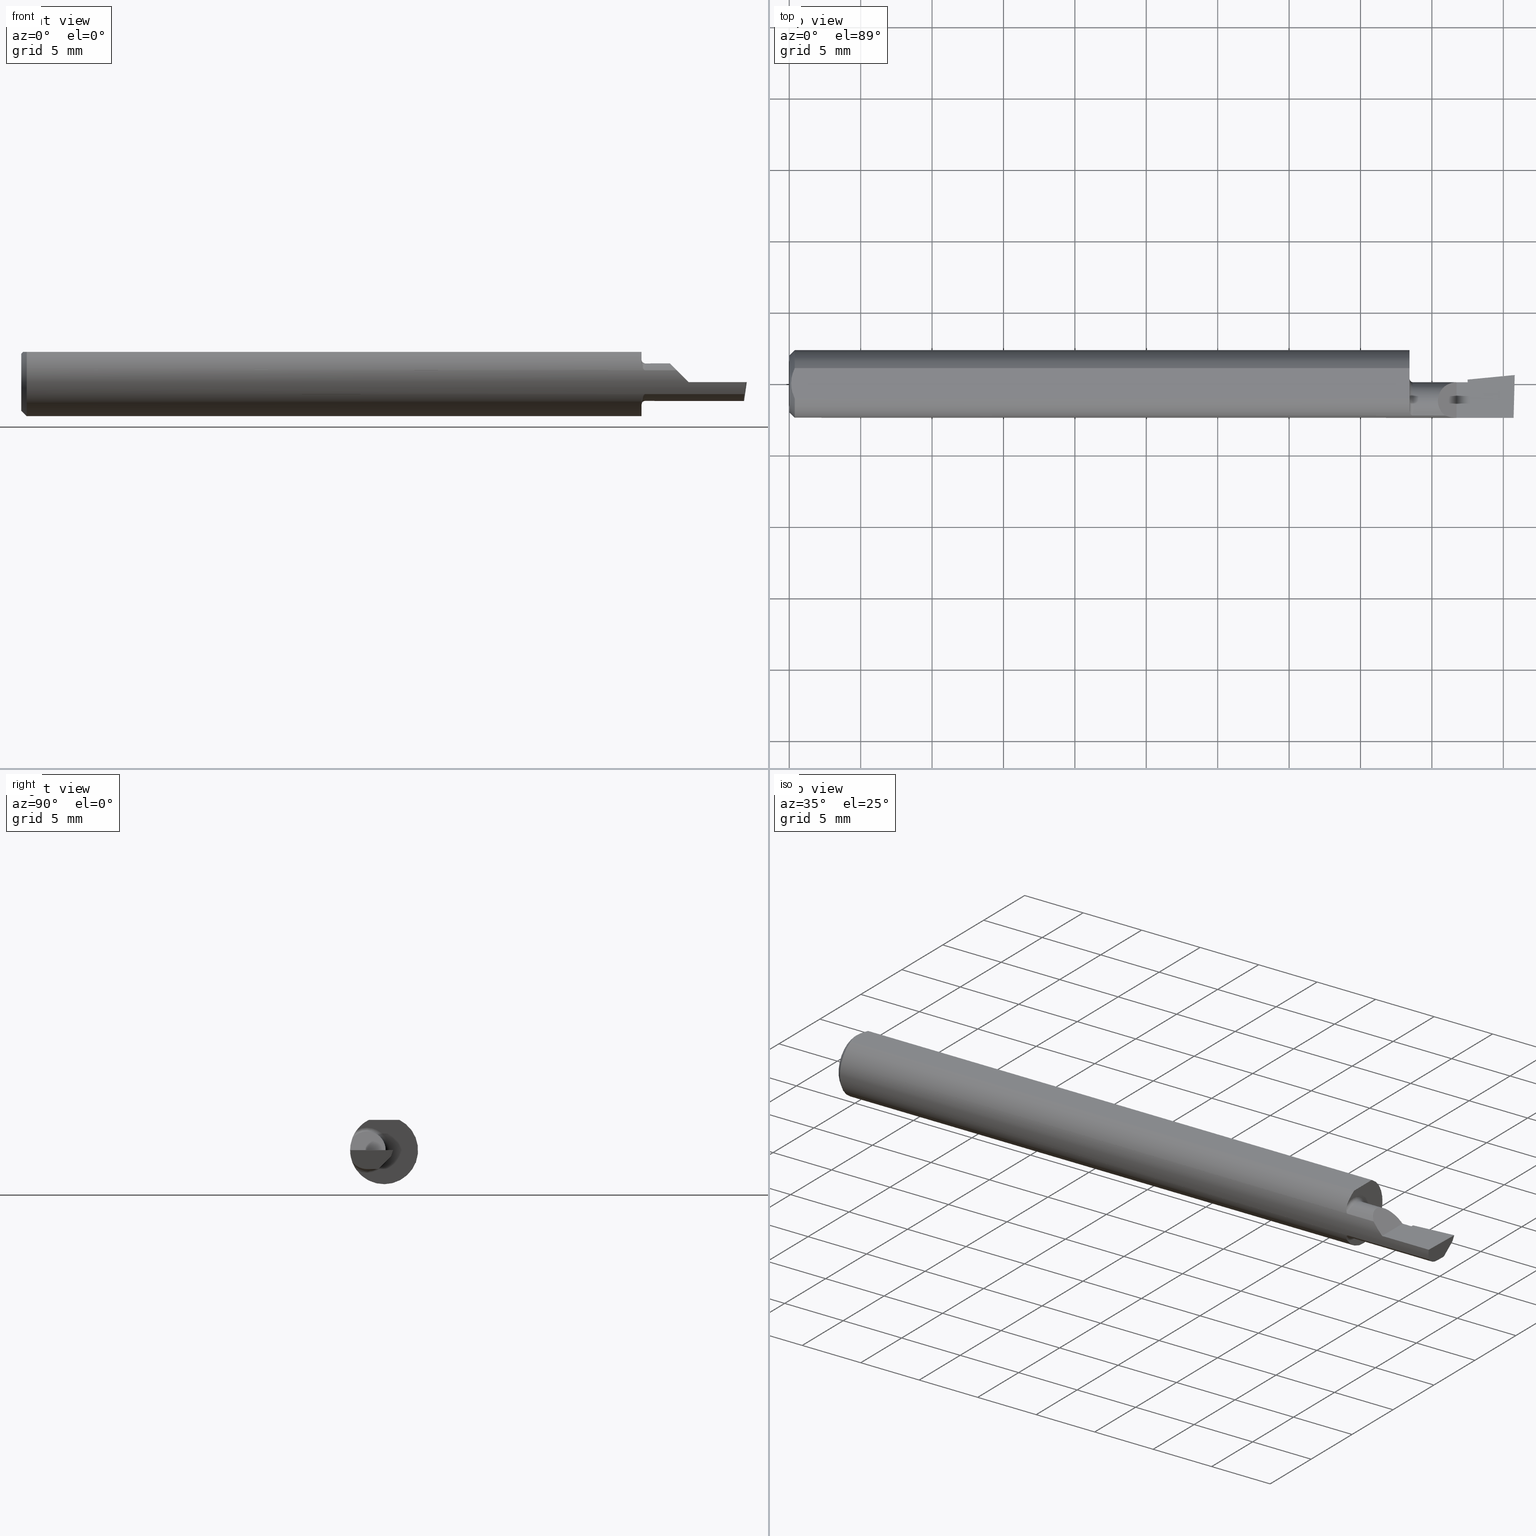
[diagram: canonical four-view strip — front | top / right | iso, engineering-drawing reading convention]
A machine part, canonical four-view strip (front | top / right | iso — engineering-drawing reading convention). The complete STEP part file that produces these views, byte-faithful:
ISO-10303-21;
HEADER;
FILE_DESCRIPTION (( 'STEP AP203' ),
    '1' );
FILE_NAME ('217288-B120250.STEP',
    '2024-04-22T22:29:31',
    ( '' ),
    ( '' ),
    'SwSTEP 2.0',
    'SolidWorks 2022',
    '' );
FILE_SCHEMA (( 'CONFIG_CONTROL_DESIGN' ));
ENDSEC;

DATA;
#1 =( BOUNDED_CURVE ( )  B_SPLINE_CURVE ( 3, ( #248, #154, #571, #54 ),
 .UNSPECIFIED., .F., .T. ) 
 B_SPLINE_CURVE_WITH_KNOTS ( ( 4, 4 ),
 ( 5.609734720198429336, 6.493234751459652898 ),
 .UNSPECIFIED. ) 
 CURVE ( )  GEOMETRIC_REPRESENTATION_ITEM ( )  RATIONAL_B_SPLINE_CURVE ( ( 1.000000000000000000, 0.9360032516356640020, 0.9360032516356640020, 1.000000000000000000 ) ) 
 REPRESENTATION_ITEM ( '' )  );
#2 = CARTESIAN_POINT ( 'NONE',  ( 1.807072063843881526, -0.08761684210526321515, 0.03292793615611791513 ) ) ;
#3 = APPROVAL ( #21, 'UNSPECIFIED' ) ;
#4 = CARTESIAN_POINT ( 'NONE',  ( 0.000000000000000000, 0.000000000000000000, 0.000000000000000000 ) ) ;
#5 = EDGE_CURVE ( 'NONE', #476, #45, #74, .T. ) ;
#6 = CARTESIAN_POINT ( 'NONE',  ( 1.870000000000000107, -0.04749999999999999362, 0.000000000000000000 ) ) ;
#7 = ORIENTED_EDGE ( 'NONE', *, *, #241, .T. ) ;
#8 = CARTESIAN_POINT ( 'NONE',  ( 0.01499999999999999598, 0.000000000000000000, 0.000000000000000000 ) ) ;
#9 = CONICAL_SURFACE ( 'NONE', #505, 0.09360000000000001652, 0.7853981633974601584 ) ;
#10 = CARTESIAN_POINT ( 'NONE',  ( 1.989525496084116662, -0.07949846265550060409, -0.06312821271502430664 ) ) ;
#11 = DIRECTION ( 'NONE',  ( 1.000000000000000000, 0.000000000000000000, 0.000000000000000000 ) ) ;
#12 = DIRECTION ( 'NONE',  ( 0.000000000000000000, 1.000000000000000000, -1.189000693621284344E-16 ) ) ;
#13 = VERTEX_POINT ( 'NONE', #88 ) ;
#14 = DIRECTION ( 'NONE',  ( 0.000000000000000000, 0.000000000000000000, 1.000000000000000000 ) ) ;
#15 = EDGE_CURVE ( 'NONE', #66, #421, #456, .T. ) ;
#16 = CARTESIAN_POINT ( 'NONE',  ( 1.807072063843881526, -0.08761684210526321515, 0.03292793615611791513 ) ) ;
#17 = VERTEX_POINT ( 'NONE', #609 ) ;
#18 = DIRECTION ( 'NONE',  ( -1.000000000000000000, -0.000000000000000000, -0.000000000000000000 ) ) ;
#19 = VECTOR ( 'NONE', #57, 39.37007874015748854 ) ;
#20 = EDGE_LOOP ( 'NONE', ( #37, #355, #261, #237, #599 ) ) ;
#21 = APPROVAL_STATUS ( 'not_yet_approved' ) ;
#22 = FACE_OUTER_BOUND ( 'NONE', #20, .T. ) ;
#23 = ORIENTED_EDGE ( 'NONE', *, *, #95, .T. ) ;
#24 =( NAMED_UNIT ( * ) PLANE_ANGLE_UNIT ( ) SI_UNIT ( $, .RADIAN. ) );
#25 = EDGE_CURVE ( 'NONE', #66, #251, #180, .T. ) ;
#26 = CARTESIAN_POINT ( 'NONE',  ( 1.870000000000000107, 0.01188242373431979727, 0.000000000000000000 ) ) ;
#27 = ORIENTED_EDGE ( 'NONE', *, *, #199, .F. ) ;
#28 = APPROVAL_ROLE ( '' ) ;
#29 = DIRECTION ( 'NONE',  ( -1.000000000000000000, 4.268512490100411279E-18, -0.000000000000000000 ) ) ;
#30 = AXIS2_PLACEMENT_3D ( 'NONE', #397, #29, #559 ) ;
#31 = ORIENTED_EDGE ( 'NONE', *, *, #183, .F. ) ;
#32 = PRODUCT_DEFINITION_FORMATION_WITH_SPECIFIED_SOURCE ( 'ANY', '', #572, .NOT_KNOWN. ) ;
#33 =( CONVERSION_BASED_UNIT ( 'INCH', #614 ) LENGTH_UNIT ( ) NAMED_UNIT ( #190 ) );
#34 = DIRECTION ( 'NONE',  ( -1.000000000000000000, -0.000000000000000000, -0.000000000000000000 ) ) ;
#35 = CARTESIAN_POINT ( 'NONE',  ( 1.715286915582778349, -0.08634457937708869824, -0.03614788177268708769 ) ) ;
#36 = LINE ( 'NONE', #367, #218 ) ;
#37 = ORIENTED_EDGE ( 'NONE', *, *, #198, .F. ) ;
#38 = CARTESIAN_POINT ( 'NONE',  ( 1.719999999999999973, -0.08761684210526313188, -0.03292793615611801228 ) ) ;
#39 = EDGE_LOOP ( 'NONE', ( #209, #203, #388 ) ) ;
#40 = DIRECTION ( 'NONE',  ( 0.000000000000000000, 1.000000000000000000, 4.268512490100410663E-17 ) ) ;
#41 = VERTEX_POINT ( 'NONE', #458 ) ;
#42 = ADVANCED_FACE ( 'NONE', ( #523 ), #100, .F. ) ;
#43 = CARTESIAN_POINT ( 'NONE',  ( 1.870000000000000107, -0.01305595953706601732, -0.03732347359622881222 ) ) ;
#44 = CARTESIAN_POINT ( 'NONE',  ( 2.010452112766631050, 0.02018496383838343580, -0.01700000000000000122 ) ) ;
#45 = VERTEX_POINT ( 'NONE', #188 ) ;
#46 = CIRCLE ( 'NONE', #485, 0.05189999999999998781 ) ;
#47 = ORGANIZATION ( 'UNSPECIFIED', 'UNSPECIFIED', '' ) ;
#48 = DIRECTION ( 'NONE',  ( -0.06894566448119622548, 0.7160281025913036723, -0.6946583704589932573 ) ) ;
#49 = EDGE_LOOP ( 'NONE', ( #164, #156, #301, #83 ) ) ;
#50 = ADVANCED_FACE ( 'NONE', ( #377 ), #380, .T. ) ;
#51 = DIRECTION ( 'NONE',  ( 0.000000000000000000, 0.000000000000000000, 1.000000000000000000 ) ) ;
#52 = ADVANCED_FACE ( 'NONE', ( #516 ), #279, .F. ) ;
#53 = DIRECTION ( 'NONE',  ( 0.000000000000000000, 0.2936076258024070129, 0.9559260233253792371 ) ) ;
#54 = CARTESIAN_POINT ( 'NONE',  ( 1.991742529076753865, -0.04749999999999999362, -0.05189999999999998087 ) ) ;
#55 = FACE_OUTER_BOUND ( 'NONE', #362, .T. ) ;
#56 = ORIENTED_EDGE ( 'NONE', *, *, #439, .F. ) ;
#57 = DIRECTION ( 'NONE',  ( -0.9953961983671800740, -0.09584575252021031166, -2.116984158397002882E-18 ) ) ;
#58 = CIRCLE ( 'NONE', #399, 0.06189999999999996894 ) ;
#59 = CARTESIAN_POINT ( 'NONE',  ( 1.719999999999999973, -0.08761684210526289596, 0.03292793615611830371 ) ) ;
#60 = ORIENTED_EDGE ( 'NONE', *, *, #95, .F. ) ;
#61 = CARTESIAN_POINT ( 'NONE',  ( 1.719999999999999973, -0.04749999999999998668, 0.000000000000000000 ) ) ;
#62 = CARTESIAN_POINT ( 'NONE',  ( 1.709999999999898490, -0.07844579323533026893, 0.05128294267166446513 ) ) ;
#63 = ORIENTED_EDGE ( 'NONE', *, *, #298, .F. ) ;
#64 = CALENDAR_DATE ( 2024, 22, 4 ) ;
#65 = LINE ( 'NONE', #159, #207 ) ;
#66 = VERTEX_POINT ( 'NONE', #425 ) ;
#67 = CARTESIAN_POINT ( 'NONE',  ( 0.01499999999999999598, 0.000000000000000000, 0.000000000000000000 ) ) ;
#68 = VECTOR ( 'NONE', #445, 39.37007874015748143 ) ;
#69 = LOCAL_TIME ( 15, 29, 31.00000000000000000, #213 ) ;
#70 = ORIENTED_EDGE ( 'NONE', *, *, #198, .T. ) ;
#71 = EDGE_CURVE ( 'NONE', #468, #126, #461, .T. ) ;
#72 = ADVANCED_FACE ( 'NONE', ( #98 ), #517, .T. ) ;
#73 = PERSON_AND_ORGANIZATION ( #313, #47 ) ;
#74 = B_SPLINE_CURVE_WITH_KNOTS ( 'NONE', 3,
 ( #402, #406, #266, #454, #35, #231, #135, #323, #272, #224 ),
 .UNSPECIFIED., .F., .F.,
 ( 4, 2, 2, 2, 4 ),
 ( 1.964515010636166552E-07, 9.235243646263626891E-05, 0.0001845084214242089275, 0.0003688203913473437549, 0.0007374443311936186140 ),
 .UNSPECIFIED. ) ;
#75 = CARTESIAN_POINT ( 'NONE',  ( 0.000000000000000000, -0.04209513035969835587, 0.08360000000000000764 ) ) ;
#76 = VERTEX_POINT ( 'NONE', #244 ) ;
#77 = SECURITY_CLASSIFICATION_LEVEL ( 'unclassified' ) ;
#78 = CARTESIAN_POINT ( 'NONE',  ( 0.000000000000000000, 0.000000000000000000, 0.000000000000000000 ) ) ;
#79 = ORIENTED_EDGE ( 'NONE', *, *, #25, .T. ) ;
#80 = COORDINATED_UNIVERSAL_TIME_OFFSET ( 8, 0, .BEHIND. ) ;
#81 = CARTESIAN_POINT ( 'NONE',  ( 0.01499999999999999598, 0.04209513035969837669, 0.08360000000000000764 ) ) ;
#82 = CIRCLE ( 'NONE', #274, 0.09360000000000001652 ) ;
#83 = ORIENTED_EDGE ( 'NONE', *, *, #365, .T. ) ;
#84 = LOCAL_TIME ( 15, 29, 31.00000000000000000, #601 ) ;
#85 = AXIS2_PLACEMENT_3D ( 'NONE', #538, #451, #162 ) ;
#86 = EDGE_CURVE ( 'NONE', #496, #118, #593, .T. ) ;
#87 = DIRECTION ( 'NONE',  ( -5.493159289247764363E-16, 0.000000000000000000, -1.000000000000000000 ) ) ;
#88 = CARTESIAN_POINT ( 'NONE',  ( 1.807072063843881526, -0.08761684210526321515, 0.03292793615611791513 ) ) ;
#89 = CARTESIAN_POINT ( 'NONE',  ( 1.870000000000000107, 0.008372692350077825391, -0.01142696330148601676 ) ) ;
#90 = CARTESIAN_POINT ( 'NONE',  ( 1.991748187365211642, -0.04728391868154194211, -0.05189999999999998087 ) ) ;
#91 = FACE_OUTER_BOUND ( 'NONE', #101, .T. ) ;
#92 = VERTEX_POINT ( 'NONE', #620 ) ;
#93 = EDGE_CURVE ( 'NONE', #509, #13, #232, .T. ) ;
#94 = LOCAL_TIME ( 15, 29, 31.00000000000000000, #172 ) ;
#95 = EDGE_CURVE ( 'NONE', #92, #341, #484, .T. ) ;
#96 = CARTESIAN_POINT ( 'NONE',  ( 1.840000000000000080, -0.09360000000000005815, 1.959434878635762025E-17 ) ) ;
#97 = CARTESIAN_POINT ( 'NONE',  ( 1.996910061254837165, -0.09360000000000009979, -6.663204267364720514E-17 ) ) ;
#98 = FACE_OUTER_BOUND ( 'NONE', #310, .T. ) ;
#99 = ORIENTED_EDGE ( 'NONE', *, *, #393, .T. ) ;
#100 = PLANE ( 'NONE',  #179 ) ;
#101 = EDGE_LOOP ( 'NONE', ( #433, #534, #562 ) ) ;
#102 = AXIS2_PLACEMENT_3D ( 'NONE', #26, #184, #448 ) ;
#103 = LOCAL_TIME ( 15, 29, 31.00000000000000000, #80 ) ;
#104 = CARTESIAN_POINT ( 'NONE',  ( 2.009953961983671267, 0.02535845752520198698, -6.829619984160658046E-17 ) ) ;
#105 = ORIENTED_EDGE ( 'NONE', *, *, #596, .F. ) ;
#106 = CARTESIAN_POINT ( 'NONE',  ( 2.000000000000000000, -0.04749999999999999362, -0.05189999999999998087 ) ) ;
#107 = CARTESIAN_POINT ( 'NONE',  ( 1.996910061254837165, -0.09360000000000009979, -6.663204267364720514E-17 ) ) ;
#108 = EDGE_LOOP ( 'NONE', ( #553, #187 ) ) ;
#109 = LINE ( 'NONE', #481, #256 ) ;
#110 = ADVANCED_FACE ( 'NONE', ( #570 ), #337, .T. ) ;
#111 = DIRECTION ( 'NONE',  ( 1.000000000000000000, 0.000000000000000000, 0.000000000000000000 ) ) ;
#112 = VECTOR ( 'NONE', #617, 39.37007874015748854 ) ;
#113 = AXIS2_PLACEMENT_3D ( 'NONE', #514, #583, #197 ) ;
#114 = CARTESIAN_POINT ( 'NONE',  ( 1.709999999999999964, 0.000000000000000000, 0.000000000000000000 ) ) ;
#115 = ORIENTED_EDGE ( 'NONE', *, *, #183, .T. ) ;
#116 =( LENGTH_UNIT ( ) NAMED_UNIT ( * ) SI_UNIT ( $, .METRE. ) );
#117 = CARTESIAN_POINT ( 'NONE',  ( 1.715303445302489349, -0.08635481258357650958, 0.03612357338114666194 ) ) ;
#118 = VERTEX_POINT ( 'NONE', #107 ) ;
#119 = APPROVAL_ROLE ( '' ) ;
#120 = CARTESIAN_POINT ( 'NONE',  ( 5.659797890829555466E-31, -0.09359999999999998876, 1.030335658007946046E-15 ) ) ;
#121 = ADVANCED_FACE ( 'NONE', ( #567 ), #332, .T. ) ;
#122 = VERTEX_POINT ( 'NONE', #475 ) ;
#123 = PERSON_AND_ORGANIZATION_ROLE ( 'classification_officer' ) ;
#124 = DIRECTION ( 'NONE',  ( 0.7071067811865391350, 8.659560562355035164E-17, 0.7071067811865558994 ) ) ;
#125 = VECTOR ( 'NONE', #560, 39.37007874015748854 ) ;
#126 = VERTEX_POINT ( 'NONE', #423 ) ;
#127 = PERSON_AND_ORGANIZATION ( #313, #47 ) ;
#128 = CARTESIAN_POINT ( 'NONE',  ( 0.01499999999999999944, -0.04209513035969835587, 0.08360000000000000764 ) ) ;
#129 = ORIENTED_EDGE ( 'NONE', *, *, #558, .F. ) ;
#130 = CARTESIAN_POINT ( 'NONE',  ( 0.009492654797564337166, 0.02859466010166625619, 0.08359999999999997988 ) ) ;
#131 = ORIENTED_EDGE ( 'NONE', *, *, #5, .F. ) ;
#132 = PERSON_AND_ORGANIZATION ( #313, #47 ) ;
#133 = CARTESIAN_POINT ( 'NONE',  ( 1.870000000000000107, -0.2500000000000000555, 3.114870918614344945E-18 ) ) ;
#134 = CONICAL_SURFACE ( 'NONE', #471, 0.09360000000000001652, 0.7853981633974601584 ) ;
#135 = CARTESIAN_POINT ( 'NONE',  ( 1.712677195950602860, -0.08414098289636359751, -0.04106822915973741550 ) ) ;
#136 = APPROVAL_PERSON_ORGANIZATION ( #73, #249, #119 ) ;
#137 = CARTESIAN_POINT ( 'NONE',  ( 1.870000000000000107, -0.04749999999999999362, 0.000000000000000000 ) ) ;
#138 = ORIENTED_EDGE ( 'NONE', *, *, #450, .T. ) ;
#139 = CARTESIAN_POINT ( 'NONE',  ( 1.709999999999999964, -0.07563789473684218168, 0.05513500593795547106 ) ) ;
#140 = EDGE_CURVE ( 'NONE', #468, #76, #46, .T. ) ;
#141 = ORIENTED_EDGE ( 'NONE', *, *, #285, .T. ) ;
#142 = ADVANCED_FACE ( 'NONE', ( #55 ), #416, .F. ) ;
#143 = LINE ( 'NONE', #276, #335 ) ;
#144 = CARTESIAN_POINT ( 'NONE',  ( 1.840000000000000080, -0.09360000000000005815, 1.959434878635762025E-17 ) ) ;
#145 = CIRCLE ( 'NONE', #610, 0.07859999999999965625 ) ;
#146 = DIRECTION ( 'NONE',  ( 0.000000000000000000, -1.000000000000000000, -4.268512490100410663E-17 ) ) ;
#147 = DIRECTION ( 'NONE',  ( -2.429359850419095176E-34, -4.268512490100410663E-17, 1.000000000000000000 ) ) ;
#148 = B_SPLINE_CURVE_WITH_KNOTS ( 'NONE', 3,
 ( #488, #62, #442, #250, #483, #117, #387, #491, #585, #59 ),
 .UNSPECIFIED., .F., .F.,
 ( 4, 2, 2, 2, 4 ),
 ( 0.0002213210176920300961, 0.0005840120096731141620, 0.0007653575056636530236, 0.0008560302536589276586, 0.0009467030016542025105 ),
 .UNSPECIFIED. ) ;
#149 = CARTESIAN_POINT ( 'NONE',  ( 0.000000000000000000, -0.04749999999999998668, 0.000000000000000000 ) ) ;
#150 = VECTOR ( 'NONE', #495, 39.37007874015748143 ) ;
#151 = DIRECTION ( 'NONE',  ( 1.000000000000000000, -4.268512490100411279E-18, 0.000000000000000000 ) ) ;
#152 = CARTESIAN_POINT ( 'NONE',  ( 1.870000000000000107, 0.004399999999999983785, 1.030335658007946243E-15 ) ) ;
#153 = CARTESIAN_POINT ( 'NONE',  ( 1.991742529076753865, -0.04749999999999999362, -0.05189999999999998087 ) ) ;
#154 = CARTESIAN_POINT ( 'NONE',  ( 1.991784456001940651, -0.07759022324566726414, -0.04514359047872664593 ) ) ;
#155 = CARTESIAN_POINT ( 'NONE',  ( 1.870000000000000107, 0.01188242373432203680, 1.035114278849349724E-15 ) ) ;
#156 = ORIENTED_EDGE ( 'NONE', *, *, #235, .T. ) ;
#157 = DIRECTION ( 'NONE',  ( 0.1240019227989161837, 0.3022330132596645624, 0.9451342385281334968 ) ) ;
#158 = VECTOR ( 'NONE', #40, 39.37007874015748143 ) ;
#159 = CARTESIAN_POINT ( 'NONE',  ( 1.992819506803471974, -0.2498119721683277894, -6.435184055121769344E-17 ) ) ;
#160 = ORIENTED_EDGE ( 'NONE', *, *, #243, .T. ) ;
#161 = APPROVAL ( #356, 'UNSPECIFIED' ) ;
#162 = DIRECTION ( 'NONE',  ( 1.000000000000000000, 0.000000000000000000, 0.000000000000000000 ) ) ;
#163 = DIRECTION ( 'NONE',  ( 0.000000000000000000, 0.000000000000000000, -1.000000000000000000 ) ) ;
#164 = ORIENTED_EDGE ( 'NONE', *, *, #608, .F. ) ;
#165 = DATE_AND_TIME ( #302, #69 ) ;
#166 = PLANE ( 'NONE',  #102 ) ;
#167 = ORIENTED_EDGE ( 'NONE', *, *, #285, .F. ) ;
#168 = PERSON_AND_ORGANIZATION_ROLE ( 'creator' ) ;
#169 = LINE ( 'NONE', #358, #532 ) ;
#170 = AXIS2_PLACEMENT_3D ( 'NONE', #263, #506, #322 ) ;
#171 = ORIENTED_EDGE ( 'NONE', *, *, #575, .F. ) ;
#172 = COORDINATED_UNIVERSAL_TIME_OFFSET ( 8, 0, .BEHIND. ) ;
#173 = CARTESIAN_POINT ( 'NONE',  ( 1.870000000000000107, -0.01879551486568540111, -0.04323959450751024142 ) ) ;
#174 = ORIENTED_EDGE ( 'NONE', *, *, #510, .F. ) ;
#175 = PERSON_AND_ORGANIZATION_ROLE ( 'design_supplier' ) ;
#176 = DIRECTION ( 'NONE',  ( 0.9953961983671787417, 0.09584575252022463354, -5.467869873542577569E-16 ) ) ;
#177 = ORIENTED_EDGE ( 'NONE', *, *, #199, .T. ) ;
#178 = DIRECTION ( 'NONE',  ( -1.000000000000000000, 4.268512490100411279E-18, -0.000000000000000000 ) ) ;
#179 = AXIS2_PLACEMENT_3D ( 'NONE', #278, #473, #328 ) ;
#180 = LINE ( 'NONE', #90, #125 ) ;
#181 = CIRCLE ( 'NONE', #440, 0.09360000000000001652 ) ;
#182 = EDGE_CURVE ( 'NONE', #468, #338, #465, .T. ) ;
#183 = EDGE_CURVE ( 'NONE', #92, #603, #383, .T. ) ;
#184 = DIRECTION ( 'NONE',  ( -1.000000000000000000, 4.268512490100411279E-18, 0.000000000000000000 ) ) ;
#185 = EDGE_LOOP ( 'NONE', ( #167, #499, #177, #334, #321, #63, #60, #115, #174, #319, #351, #247, #131 ) ) ;
#186 = PLANE ( 'NONE',  #533 ) ;
#187 = ORIENTED_EDGE ( 'NONE', *, *, #596, .T. ) ;
#188 = CARTESIAN_POINT ( 'NONE',  ( 1.709999999999999964, -0.07563789473684218168, -0.05513500593795547106 ) ) ;
#189 = AXIS2_PLACEMENT_3D ( 'NONE', #137, #597, #508 ) ;
#190 = DIMENSIONAL_EXPONENTS ( 1.000000000000000000, 0.000000000000000000, 0.000000000000000000, 0.000000000000000000, 0.000000000000000000, 0.000000000000000000, 0.000000000000000000 ) ;
#191 = CARTESIAN_POINT ( 'NONE',  ( 1.870000000000000107, -0.04749999999999999362, 0.000000000000000000 ) ) ;
#192 = DIRECTION ( 'NONE',  ( 1.000000000000000000, -4.268512490100411279E-18, 0.000000000000000000 ) ) ;
#193 = CARTESIAN_POINT ( 'NONE',  ( 1.870000000000000107, -0.04749999999999999362, -0.05189999999999998087 ) ) ;
#194 = DIRECTION ( 'NONE',  ( 1.000000000000000000, -4.268512490100411279E-18, 0.000000000000000000 ) ) ;
#195 = ORIENTED_EDGE ( 'NONE', *, *, #478, .F. ) ;
#196 = VECTOR ( 'NONE', #124, 39.37007874015748143 ) ;
#197 = DIRECTION ( 'NONE',  ( -4.268512490100411279E-18, -1.000000000000000000, 0.000000000000000000 ) ) ;
#198 = EDGE_CURVE ( 'NONE', #275, #446, #300, .T. ) ;
#199 = EDGE_CURVE ( 'NONE', #118, #509, #385, .T. ) ;
#200 = DIRECTION ( 'NONE',  ( -0.9922060308645500593, 0.02598182930467757279, 0.1218693434051330293 ) ) ;
#201 = DIRECTION ( 'NONE',  ( -1.000000000000000000, -0.000000000000000000, -0.000000000000000000 ) ) ;
#202 = PLANE ( 'NONE',  #544 ) ;
#203 = ORIENTED_EDGE ( 'NONE', *, *, #182, .T. ) ;
#204 = CARTESIAN_POINT ( 'NONE',  ( 0.000000000000000000, 0.000000000000000000, 0.000000000000000000 ) ) ;
#205 = CC_DESIGN_PERSON_AND_ORGANIZATION_ASSIGNMENT ( #403, #168, ( #282 ) ) ;
#206 = VERTEX_POINT ( 'NONE', #155 ) ;
#207 = VECTOR ( 'NONE', #253, 39.37007874015748854 ) ;
#208 = LINE ( 'NONE', #539, #518 ) ;
#209 = ORIENTED_EDGE ( 'NONE', *, *, #140, .F. ) ;
#210 =( NAMED_UNIT ( * ) SI_UNIT ( $, .STERADIAN. ) SOLID_ANGLE_UNIT ( ) );
#211 = FACE_OUTER_BOUND ( 'NONE', #436, .T. ) ;
#212 = ORIENTED_EDGE ( 'NONE', *, *, #482, .F. ) ;
#213 = COORDINATED_UNIVERSAL_TIME_OFFSET ( 8, 0, .BEHIND. ) ;
#214 = LINE ( 'NONE', #223, #333 ) ;
#215 = ORIENTED_EDGE ( 'NONE', *, *, #459, .F. ) ;
#216 = EDGE_CURVE ( 'NONE', #17, #126, #579, .T. ) ;
#217 = DATE_AND_TIME ( #494, #103 ) ;
#218 = VECTOR ( 'NONE', #225, 39.37007874015748143 ) ;
#219 = CARTESIAN_POINT ( 'NONE',  ( 1.709999999999999964, -0.04749999999999999362, 0.000000000000000000 ) ) ;
#220 = AXIS2_PLACEMENT_3D ( 'NONE', #320, #87, #268 ) ;
#221 = ORIENTED_EDGE ( 'NONE', *, *, #584, .T. ) ;
#222 = APPROVAL_DATE_TIME ( #217, #249 ) ;
#223 = CARTESIAN_POINT ( 'NONE',  ( 1.253289949938072301, -0.04749999999999999362, 3.418835249456273698E-16 ) ) ;
#224 = CARTESIAN_POINT ( 'NONE',  ( 1.709999999999999964, -0.07563789473684218168, -0.05513500593795547106 ) ) ;
#225 = DIRECTION ( 'NONE',  ( -4.268512490100411279E-18, -1.000000000000000000, 1.189000693621284344E-16 ) ) ;
#226 = CC_DESIGN_PERSON_AND_ORGANIZATION_ASSIGNMENT ( #132, #123, ( #381 ) ) ;
#227 = CARTESIAN_POINT ( 'NONE',  ( 1.997999968238724611, 0.02048992710402963019, -0.01544976510332472103 ) ) ;
#228 = ADVANCED_FACE ( 'NONE', ( #390 ), #202, .F. ) ;
#229 = CARTESIAN_POINT ( 'NONE',  ( 1.840000000000000080, -0.2500000000000000555, 1.959434878635762025E-17 ) ) ;
#230 = AXIS2_PLACEMENT_3D ( 'NONE', #44, #48, #234 ) ;
#231 = CARTESIAN_POINT ( 'NONE',  ( 1.713517105801555918, -0.08509955497191655505, -0.03903086882732484386 ) ) ;
#232 =( BOUNDED_CURVE ( )  B_SPLINE_CURVE ( 3, ( #144, #569, #376, #2 ),
 .UNSPECIFIED., .F., .F. ) 
 B_SPLINE_CURVE_WITH_KNOTS ( ( 4, 4 ),
 ( 4.712388980384689674, 5.071876106261397510 ),
 .UNSPECIFIED. ) 
 CURVE ( )  GEOMETRIC_REPRESENTATION_ITEM ( )  RATIONAL_B_SPLINE_CURVE ( ( 1.000000000000000000, 0.9892597135044074452, 0.9892597135044074452, 1.000000000000000000 ) ) 
 REPRESENTATION_ITEM ( '' )  );
#233 = ORIENTED_EDGE ( 'NONE', *, *, #392, .F. ) ;
#234 = DIRECTION ( 'NONE',  ( 0.000000000000000000, 0.6963153109074923242, 0.7177360153954949196 ) ) ;
#235 = EDGE_CURVE ( 'NONE', #421, #17, #529, .T. ) ;
#236 = CARTESIAN_POINT ( 'NONE',  ( 1.994214979946649979, -0.09158396120079809188, -0.02237196186856233587 ) ) ;
#237 = ORIENTED_EDGE ( 'NONE', *, *, #510, .T. ) ;
#238 = VECTOR ( 'NONE', #245, 39.37007874015748143 ) ;
#239 = DIRECTION ( 'NONE',  ( 0.000000000000000000, 0.000000000000000000, 1.000000000000000000 ) ) ;
#240 = DIRECTION ( 'NONE',  ( -1.000000000000000000, 4.268512490100411279E-18, -0.000000000000000000 ) ) ;
#241 = EDGE_CURVE ( 'NONE', #258, #512, #618, .T. ) ;
#242 = LINE ( 'NONE', #424, #318 ) ;
#243 = EDGE_CURVE ( 'NONE', #13, #122, #492, .T. ) ;
#244 = CARTESIAN_POINT ( 'NONE',  ( 1.870000000000000107, -0.04749999999999999362, -0.05189999999999998087 ) ) ;
#245 = DIRECTION ( 'NONE',  ( 1.000000000000000000, -4.268512490100411279E-18, 0.000000000000000000 ) ) ;
#246 = FACE_OUTER_BOUND ( 'NONE', #613, .T. ) ;
#247 = ORIENTED_EDGE ( 'NONE', *, *, #270, .F. ) ;
#248 = CARTESIAN_POINT ( 'NONE',  ( 1.993022307651337144, -0.08761684210526320127, -0.03292793615611794983 ) ) ;
#249 = APPROVAL ( #396, 'UNSPECIFIED' ) ;
#250 = CARTESIAN_POINT ( 'NONE',  ( 1.712672428355745069, -0.08413290827570171770, 0.04108351314867479676 ) ) ;
#251 = VERTEX_POINT ( 'NONE', #153 ) ;
#252 = APPROVAL_DATE_TIME ( #360, #3 ) ;
#253 = DIRECTION ( 'NONE',  ( 0.02617694830785724860, 0.9996573249755575929, -1.459184416195239787E-17 ) ) ;
#254 = ORIENTED_EDGE ( 'NONE', *, *, #524, .F. ) ;
#255 = PERSON_AND_ORGANIZATION ( #313, #47 ) ;
#256 = VECTOR ( 'NONE', #157, 39.37007874015748854 ) ;
#257 = DIRECTION ( 'NONE',  ( 1.000000000000000000, -4.268512490100411279E-18, 0.000000000000000000 ) ) ;
#258 = VERTEX_POINT ( 'NONE', #498 ) ;
#259 = COORDINATED_UNIVERSAL_TIME_OFFSET ( 8, 0, .BEHIND. ) ;
#260 = CARTESIAN_POINT ( 'NONE',  ( 1.709999999999999964, 0.04209513035969836975, 0.08360000000000000764 ) ) ;
#261 = ORIENTED_EDGE ( 'NONE', *, *, #469, .T. ) ;
#262 = CALENDAR_DATE ( 2024, 22, 4 ) ;
#263 = CARTESIAN_POINT ( 'NONE',  ( 1.840000000000000080, -0.2500000000000000555, 1.959434878635762025E-17 ) ) ;
#264 = ORIENTED_EDGE ( 'NONE', *, *, #5, .T. ) ;
#265 = LINE ( 'NONE', #133, #305 ) ;
#266 = CARTESIAN_POINT ( 'NONE',  ( 1.717673407485087012, -0.08736256188074749407, -0.03360771121218446289 ) ) ;
#267 = CC_DESIGN_DATE_AND_TIME_ASSIGNMENT ( #165, #500, ( #282 ) ) ;
#268 = DIRECTION ( 'NONE',  ( -1.000000000000000000, 0.000000000000000000, 5.493159289247764363E-16 ) ) ;
#269 = VERTEX_POINT ( 'NONE', #260 ) ;
#270 = EDGE_CURVE ( 'NONE', #45, #269, #82, .T. ) ;
#271 = CARTESIAN_POINT ( 'NONE',  ( 1.870000000000000107, -0.02719745208736015774, -0.05189999999999998087 ) ) ;
#272 = CARTESIAN_POINT ( 'NONE',  ( 1.709999999999999964, -0.07847738094181314072, -0.05123960853979434016 ) ) ;
#273 = PLANE ( 'NONE',  #170 ) ;
#274 = AXIS2_PLACEMENT_3D ( 'NONE', #114, #257, #536 ) ;
#275 = VERTEX_POINT ( 'NONE', #589 ) ;
#276 = CARTESIAN_POINT ( 'NONE',  ( 0.000000000000000000, 0.04209513035969837669, 0.08360000000000000764 ) ) ;
#277 = DIRECTION ( 'NONE',  ( 4.268512490100411279E-18, 1.000000000000000000, 0.000000000000000000 ) ) ;
#278 = CARTESIAN_POINT ( 'NONE',  ( 1.870000000000000107, 0.01188242373431979727, 0.000000000000000000 ) ) ;
#279 = PLANE ( 'NONE',  #586 ) ;
#280 = AXIS2_PLACEMENT_3D ( 'NONE', #329, #192, #378 ) ;
#281 = AXIS2_PLACEMENT_3D ( 'NONE', #61, #336, #431 ) ;
#282 = PRODUCT_DEFINITION ( 'UNKNOWN', '', #32, #470 ) ;
#283 = DIRECTION ( 'NONE',  ( 0.000000000000000000, -1.000000000000000000, 2.664535259100375697E-15 ) ) ;
#284 = ADVANCED_FACE ( 'NONE', ( #22 ), #134, .T. ) ;
#285 = EDGE_CURVE ( 'NONE', #496, #476, #208, .T. ) ;
#286 = CARTESIAN_POINT ( 'NONE',  ( 1.993022307651337144, -0.08761684210526320127, -0.03292793615611794983 ) ) ;
#287 = DIRECTION ( 'NONE',  ( -1.000000000000000000, 4.268512490100411279E-18, -0.000000000000000000 ) ) ;
#288 = EDGE_LOOP ( 'NONE', ( #129, #141, #215, #543, #160, #502, #582, #590, #493, #525 ) ) ;
#289 = LINE ( 'NONE', #106, #519 ) ;
#290 = APPLICATION_CONTEXT ( 'configuration controlled 3d designs of mechanical parts and assemblies' ) ;
#291 = CARTESIAN_POINT ( 'NONE',  ( 1.761940995672496513, -0.05057322517486217972, 0.07805900432750237372 ) ) ;
#292 = ORIENTED_EDGE ( 'NONE', *, *, #343, .F. ) ;
#293 = PRODUCT_RELATED_PRODUCT_CATEGORY ( 'detail', '', ( #572 ) ) ;
#294 = CIRCLE ( 'NONE', #30, 0.05189999999999997393 ) ;
#295 = FACE_OUTER_BOUND ( 'NONE', #594, .T. ) ;
#296 = DIRECTION ( 'NONE',  ( -1.000000000000000000, 4.268512490100411279E-18, -0.000000000000000000 ) ) ;
#297 = ORIENTED_EDGE ( 'NONE', *, *, #469, .F. ) ;
#298 = EDGE_CURVE ( 'NONE', #341, #606, #148, .T. ) ;
#299 = DIRECTION ( 'NONE',  ( -2.972230601656782806E-18, -0.6963153109074922131, -0.7177360153954949196 ) ) ;
#300 = LINE ( 'NONE', #429, #196 ) ;
#301 = ORIENTED_EDGE ( 'NONE', *, *, #450, .F. ) ;
#302 = CALENDAR_DATE ( 2024, 22, 4 ) ;
#303 = ORIENTED_EDGE ( 'NONE', *, *, #182, .F. ) ;
#304 = PERSON_AND_ORGANIZATION ( #313, #47 ) ;
#305 = VECTOR ( 'NONE', #317, 39.37007874015748143 ) ;
#306 = DIRECTION ( 'NONE',  ( 0.000000000000000000, 0.000000000000000000, 1.000000000000000000 ) ) ;
#307 = ORIENTED_EDGE ( 'NONE', *, *, #298, .T. ) ;
#308 = EDGE_CURVE ( 'NONE', #118, #41, #65, .T. ) ;
#309 = LINE ( 'NONE', #89, #565 ) ;
#310 = EDGE_LOOP ( 'NONE', ( #366, #345, #303, #105, #391, #615 ) ) ;
#311 = CARTESIAN_POINT ( 'NONE',  ( 0.01203648650249650523, 0.03550565407121123590, 0.08360000000000000764 ) ) ;
#312 = EDGE_LOOP ( 'NONE', ( #307, #368, #264, #521 ) ) ;
#313 = PERSON ( 'UNSPECIFIED', 'UNSPECIFIED', 'UNSPECIFIED', ('UNSPECIFIED'), ('UNSPECIFIED'), ('UNSPECIFIED') ) ;
#314 = CC_DESIGN_PERSON_AND_ORGANIZATION_ASSIGNMENT ( #255, #175, ( #32 ) ) ;
#315 = VECTOR ( 'NONE', #408, 39.37007874015748143 ) ;
#316 = CC_DESIGN_APPROVAL ( #161, ( #32 ) ) ;
#317 = DIRECTION ( 'NONE',  ( 4.268512490100411279E-18, 1.000000000000000000, -2.344761903626518103E-33 ) ) ;
#318 = VECTOR ( 'NONE', #299, 39.37007874015748854 ) ;
#319 = ORIENTED_EDGE ( 'NONE', *, *, #241, .F. ) ;
#320 = CARTESIAN_POINT ( 'NONE',  ( 2.000000000000000000, -0.2500000000000000555, -6.829619984160658046E-17 ) ) ;
#321 = ORIENTED_EDGE ( 'NONE', *, *, #372, .F. ) ;
#322 = DIRECTION ( 'NONE',  ( -0.7071067811865516806, 0.000000000000000000, 0.7071067811865433539 ) ) ;
#323 = CARTESIAN_POINT ( 'NONE',  ( 1.710641926394870227, -0.08094594005641383982, -0.04722385609747348917 ) ) ;
#324 = ADVANCED_FACE ( 'NONE', ( #211 ), #9, .T. ) ;
#325 = CARTESIAN_POINT ( 'NONE',  ( 1.996868812538701299, -0.01498137488205840244, -0.05189999999999998087 ) ) ;
#326 = AXIS2_PLACEMENT_3D ( 'NONE', #149, #240, #327 ) ;
#327 = DIRECTION ( 'NONE',  ( -4.268512490100411279E-18, -1.000000000000000000, 0.000000000000000000 ) ) ;
#328 = DIRECTION ( 'NONE',  ( -4.268512490100411279E-18, -1.000000000000000000, 0.000000000000000000 ) ) ;
#329 = CARTESIAN_POINT ( 'NONE',  ( 1.709999999999999964, 0.000000000000000000, 0.000000000000000000 ) ) ;
#330 = CC_DESIGN_PERSON_AND_ORGANIZATION_ASSIGNMENT ( #554, #541, ( #572 ) ) ;
#331 = ADVANCED_FACE ( 'NONE', ( #246 ), #166, .T. ) ;
#332 = PLANE ( 'NONE',  #437 ) ;
#333 = VECTOR ( 'NONE', #176, 39.37007874015748143 ) ;
#334 = ORIENTED_EDGE ( 'NONE', *, *, #93, .T. ) ;
#335 = VECTOR ( 'NONE', #428, 39.37007874015748143 ) ;
#336 = DIRECTION ( 'NONE',  ( -1.000000000000000000, 4.268512490100411279E-18, -0.000000000000000000 ) ) ;
#337 = CYLINDRICAL_SURFACE ( 'NONE', #326, 0.05189999999999998087 ) ;
#338 = VERTEX_POINT ( 'NONE', #271 ) ;
#339 = LINE ( 'NONE', #193, #158 ) ;
#340 = CARTESIAN_POINT ( 'NONE',  ( 0.01499999999999999598, 0.000000000000000000, 0.000000000000000000 ) ) ;
#341 = VERTEX_POINT ( 'NONE', #139 ) ;
#342 = CARTESIAN_POINT ( 'NONE',  ( 0.01499999999999999944, -0.04209513035969835587, 0.08360000000000000764 ) ) ;
#343 = EDGE_CURVE ( 'NONE', #603, #446, #420, .T. ) ;
#344 = CARTESIAN_POINT ( 'NONE',  ( 1.781612990575158539, 0.004399999999999980316, 0.05838700942484074258 ) ) ;
#345 = ORIENTED_EDGE ( 'NONE', *, *, #616, .T. ) ;
#346 = AXIS2_PLACEMENT_3D ( 'NONE', #104, #576, #53 ) ;
#347 = AXIS2_PLACEMENT_3D ( 'NONE', #4, #201, #14 ) ;
#348 = CARTESIAN_POINT ( 'NONE',  ( 1.870000000000000107, -0.01305595953706601732, -0.03732347359622881222 ) ) ;
#349 = EDGE_LOOP ( 'NONE', ( #27, #411, #430, #486, #212, #233 ) ) ;
#350 = CARTESIAN_POINT ( 'NONE',  ( 2.010452112766631050, 0.02018496383838343580, -0.01700000000000000122 ) ) ;
#351 = ORIENTED_EDGE ( 'NONE', *, *, #524, .T. ) ;
#352 = ADVANCED_BREP_SHAPE_REPRESENTATION ( '217288-B120250', ( #427, #85 ), #418 ) ;
#353 = CARTESIAN_POINT ( 'NONE',  ( 2.000000000000000000, 0.1436000000000000332, 0.08359999999999999376 ) ) ;
#354 = EDGE_CURVE ( 'NONE', #359, #275, #145, .T. ) ;
#355 = ORIENTED_EDGE ( 'NONE', *, *, #354, .F. ) ;
#356 = APPROVAL_STATUS ( 'not_yet_approved' ) ;
#357 = VECTOR ( 'NONE', #581, 39.37007874015748854 ) ;
#358 = CARTESIAN_POINT ( 'NONE',  ( 0.01499999999999999598, 0.000000000000000000, -0.09360000000000001652 ) ) ;
#359 = VERTEX_POINT ( 'NONE', #561 ) ;
#360 = DATE_AND_TIME ( #64, #400 ) ;
#361 = CARTESIAN_POINT ( 'NONE',  ( 0.005000000000000223883, 0.007308422719211823959, 0.08360000000000000764 ) ) ;
#362 = EDGE_LOOP ( 'NONE', ( #398, #537, #386, #373, #415, #540 ) ) ;
#363 = APPLICATION_PROTOCOL_DEFINITION ( 'international standard', 'config_control_design', 1994, #290 ) ;
#364 = CARTESIAN_POINT ( 'NONE',  ( 1.794999999999999929, -0.08761684210526320127, 0.03292793615611794983 ) ) ;
#365 = EDGE_CURVE ( 'NONE', #206, #41, #214, .T. ) ;
#366 = ORIENTED_EDGE ( 'NONE', *, *, #15, .F. ) ;
#367 = CARTESIAN_POINT ( 'NONE',  ( 1.709999999999999964, 0.1436000000000000332, 0.08359999999999999376 ) ) ;
#368 = ORIENTED_EDGE ( 'NONE', *, *, #459, .T. ) ;
#369 = CARTESIAN_POINT ( 'NONE',  ( 0.005000000000000228220, -0.007328888879231052964, 0.08360000000000000764 ) ) ;
#370 = ORIENTED_EDGE ( 'NONE', *, *, #478, .T. ) ;
#371 = CYLINDRICAL_SURFACE ( 'NONE', #587, 0.09360000000000001652 ) ;
#372 = EDGE_CURVE ( 'NONE', #606, #13, #453, .T. ) ;
#373 = ORIENTED_EDGE ( 'NONE', *, *, #608, .T. ) ;
#374 = AXIS2_PLACEMENT_3D ( 'NONE', #191, #151, #283 ) ;
#375 = APPROVAL_PERSON_ORGANIZATION ( #595, #161, #545 ) ;
#376 = CARTESIAN_POINT ( 'NONE',  ( 1.817628038131437362, -0.09158396120079809188, 0.02237196186856229424 ) ) ;
#377 = FACE_OUTER_BOUND ( 'NONE', #49, .T. ) ;
#378 = DIRECTION ( 'NONE',  ( 0.000000000000000000, 1.000000000000000000, 0.000000000000000000 ) ) ;
#379 = CARTESIAN_POINT ( 'NONE',  ( 2.215357982367772171E-19, 0.004399999999999983785, 1.030335658007946046E-15 ) ) ;
#380 = PLANE ( 'NONE',  #346 ) ;
#381 = SECURITY_CLASSIFICATION ( '', '', #77 ) ;
#382 = DIRECTION ( 'NONE',  ( -1.000000000000000000, 5.691349986800549142E-18, -0.000000000000000000 ) ) ;
#383 = LINE ( 'NONE', #75, #150 ) ;
#384 = FACE_OUTER_BOUND ( 'NONE', #312, .T. ) ;
#385 = LINE ( 'NONE', #120, #68 ) ;
#386 = ORIENTED_EDGE ( 'NONE', *, *, #15, .T. ) ;
#387 = CARTESIAN_POINT ( 'NONE',  ( 1.715970824386036320, -0.08673325660711261875, 0.03520002281093527474 ) ) ;
#388 = ORIENTED_EDGE ( 'NONE', *, *, #584, .F. ) ;
#389 = APPLICATION_PROTOCOL_DEFINITION ( 'international standard', 'config_control_design', 1994, #551 ) ;
#390 = FACE_OUTER_BOUND ( 'NONE', #549, .T. ) ;
#391 = ORIENTED_EDGE ( 'NONE', *, *, #216, .F. ) ;
#392 = EDGE_CURVE ( 'NONE', #509, #122, #401, .T. ) ;
#393 = EDGE_CURVE ( 'NONE', #507, #206, #265, .T. ) ;
#394 = CARTESIAN_POINT ( 'NONE',  ( 0.01499999999999999598, 0.000000000000000000, 0.000000000000000000 ) ) ;
#395 = ORIENTED_EDGE ( 'NONE', *, *, #216, .T. ) ;
#396 = APPROVAL_STATUS ( 'not_yet_approved' ) ;
#397 = CARTESIAN_POINT ( 'NONE',  ( 1.719999999999999973, -0.04749999999999999362, 0.000000000000000000 ) ) ;
#398 = ORIENTED_EDGE ( 'NONE', *, *, #558, .T. ) ;
#399 = AXIS2_PLACEMENT_3D ( 'NONE', #219, #178, #503 ) ;
#400 = LOCAL_TIME ( 15, 29, 31.00000000000000000, #259 ) ;
#401 = LINE ( 'NONE', #229, #426 ) ;
#402 = CARTESIAN_POINT ( 'NONE',  ( 1.719999999999999973, -0.08761684210526313188, -0.03292793615611801228 ) ) ;
#403 = PERSON_AND_ORGANIZATION ( #313, #47 ) ;
#404 = ADVANCED_FACE ( 'NONE', ( #91 ), #273, .F. ) ;
#405 = CARTESIAN_POINT ( 'NONE',  ( 0.01206089165507025739, -0.03555991978469312531, 0.08360000000000000764 ) ) ;
#406 = CARTESIAN_POINT ( 'NONE',  ( 1.718769044122002265, -0.08761684210526318739, -0.03292793615611804003 ) ) ;
#407 = CARTESIAN_POINT ( 'NONE',  ( 0.005000000000000236026, 1.025183009042025117E-17, 0.08360000000000000764 ) ) ;
#408 = DIRECTION ( 'NONE',  ( 0.1053106618241601428, 0.6976485211320175850, 0.7086580314005241910 ) ) ;
#409 = VECTOR ( 'NONE', #542, 39.37007874015748854 ) ;
#410 = CARTESIAN_POINT ( 'NONE',  ( 0.005000000000000236026, 1.025183009042025117E-17, 0.08360000000000000764 ) ) ;
#411 = ORIENTED_EDGE ( 'NONE', *, *, #308, .T. ) ;
#412 = CC_DESIGN_DATE_AND_TIME_ASSIGNMENT ( #447, #441, ( #381 ) ) ;
#413 = EDGE_CURVE ( 'NONE', #341, #45, #58, .T. ) ;
#414 = ADVANCED_FACE ( 'NONE', ( #552 ), #607, .F. ) ;
#415 = ORIENTED_EDGE ( 'NONE', *, *, #308, .F. ) ;
#416 = PLANE ( 'NONE',  #600 ) ;
#417 = CLOSED_SHELL ( 'NONE', ( #324, #331, #598, #52, #480, #228, #414, #404, #573, #284, #526, #121, #110, #50, #72, #42, #142 ) ) ;
#418 =( GEOMETRIC_REPRESENTATION_CONTEXT ( 3 ) GLOBAL_UNCERTAINTY_ASSIGNED_CONTEXT ( ( #568 ) ) GLOBAL_UNIT_ASSIGNED_CONTEXT ( ( #33, #24, #210 ) ) REPRESENTATION_CONTEXT ( 'NONE', 'WORKASPACE' ) );
#419 = CARTESIAN_POINT ( 'NONE',  ( 1.993022307651337144, -0.08761684210526320127, -0.03292793615611794983 ) ) ;
#420 = B_SPLINE_CURVE_WITH_KNOTS ( 'NONE', 3,
 ( #128, #405, #612, #511, #369, #501 ),
 .UNSPECIFIED., .F., .F.,
 ( 4, 2, 4 ),
 ( 0.005785415439423114564, 0.006333348270144337384, 0.006881281100865560205 ),
 .UNSPECIFIED. ) ;
#421 = VERTEX_POINT ( 'NONE', #455 ) ;
#422 = FACE_OUTER_BOUND ( 'NONE', #39, .T. ) ;
#423 = CARTESIAN_POINT ( 'NONE',  ( 1.870000000000000107, -0.003410787678495109682, -0.02738158791723481478 ) ) ;
#424 = CARTESIAN_POINT ( 'NONE',  ( 1.870000000000000107, -0.01305595953706601732, -0.03732347359622881222 ) ) ;
#425 = CARTESIAN_POINT ( 'NONE',  ( 1.992583253560378687, -0.01539402727707545743, -0.05189999999999998087 ) ) ;
#426 = VECTOR ( 'NONE', #555, 39.37007874015748143 ) ;
#427 = MANIFOLD_SOLID_BREP ( 'Extrude7', #417 ) ;
#428 = DIRECTION ( 'NONE',  ( 1.000000000000000000, 0.000000000000000000, 0.000000000000000000 ) ) ;
#429 = CARTESIAN_POINT ( 'NONE',  ( 0.01499999999999999598, 1.146269404001922775E-17, 0.09360000000000001652 ) ) ;
#430 = ORIENTED_EDGE ( 'NONE', *, *, #365, .F. ) ;
#431 = DIRECTION ( 'NONE',  ( -4.268512490100411279E-18, -1.000000000000000000, 0.000000000000000000 ) ) ;
#432 = DIRECTION ( 'NONE',  ( 0.000000000000000000, -1.189000693621284344E-16, -1.000000000000000000 ) ) ;
#433 = ORIENTED_EDGE ( 'NONE', *, *, #243, .F. ) ;
#434 = APPROVAL_DATE_TIME ( #490, #161 ) ;
#435 = DIRECTION ( 'NONE',  ( 1.000000000000000000, 0.000000000000000000, 0.000000000000000000 ) ) ;
#436 = EDGE_LOOP ( 'NONE', ( #171, #70, #370, #7, #297 ) ) ;
#437 = AXIS2_PLACEMENT_3D ( 'NONE', #520, #194, #277 ) ;
#438 = APPROVAL_PERSON_ORGANIZATION ( #304, #3, #28 ) ;
#439 = EDGE_CURVE ( 'NONE', #269, #92, #36, .T. ) ;
#440 = AXIS2_PLACEMENT_3D ( 'NONE', #8, #487, #51 ) ;
#441 = DATE_TIME_ROLE ( 'classification_date' ) ;
#442 = CARTESIAN_POINT ( 'NONE',  ( 1.710655979727548681, -0.08096918006680571545, 0.04717962600073366541 ) ) ;
#443 = EDGE_LOOP ( 'NONE', ( #474, #489, #23, #556 ) ) ;
#444 = SHAPE_DEFINITION_REPRESENTATION ( #528, #352 ) ;
#445 = DIRECTION ( 'NONE',  ( -1.000000000000000000, -0.000000000000000000, -0.000000000000000000 ) ) ;
#446 = VERTEX_POINT ( 'NONE', #407 ) ;
#447 = DATE_AND_TIME ( #262, #94 ) ;
#448 = DIRECTION ( 'NONE',  ( -4.268512490100411279E-18, -1.000000000000000000, 0.000000000000000000 ) ) ;
#449 = EDGE_LOOP ( 'NONE', ( #588, #79, #504, #221 ) ) ;
#450 = EDGE_CURVE ( 'NONE', #206, #17, #309, .T. ) ;
#451 = DIRECTION ( 'NONE',  ( 0.000000000000000000, 0.000000000000000000, 1.000000000000000000 ) ) ;
#452 = CIRCLE ( 'NONE', #189, 0.05189999999999998781 ) ;
#453 = LINE ( 'NONE', #364, #574 ) ;
#454 = CARTESIAN_POINT ( 'NONE',  ( 1.715969295948312601, -0.08673209544129667492, -0.03520282789281035246 ) ) ;
#455 = CARTESIAN_POINT ( 'NONE',  ( 1.997769594411408667, 0.01896377621721142409, -0.01700000000000000122 ) ) ;
#456 = LINE ( 'NONE', #227, #315 ) ;
#457 = DIRECTION ( 'NONE',  ( 0.7071067811865391350, 0.000000000000000000, -0.7071067811865558994 ) ) ;
#458 = CARTESIAN_POINT ( 'NONE',  ( 2.000000000000003553, 0.02440000000001020172, 3.227368937358794860E-14 ) ) ;
#459 = EDGE_CURVE ( 'NONE', #606, #476, #294, .T. ) ;
#460 = EDGE_CURVE ( 'NONE', #507, #126, #452, .T. ) ;
#461 = CIRCLE ( 'NONE', #374, 0.05189999999999997393 ) ;
#462 = DIRECTION ( 'NONE',  ( -1.253267817926302346E-18, -0.2936076258024070684, -0.9559260233253792371 ) ) ;
#463 = ORIENTED_EDGE ( 'NONE', *, *, #575, .T. ) ;
#464 = DIRECTION ( 'NONE',  ( -1.000000000000000000, -0.000000000000000000, -0.000000000000000000 ) ) ;
#465 = LINE ( 'NONE', #43, #112 ) ;
#466 = ORIENTED_EDGE ( 'NONE', *, *, #460, .F. ) ;
#467 = CARTESIAN_POINT ( 'NONE',  ( 2.000000000000000000, -0.04749999999999999362, -0.05189999999999998087 ) ) ;
#468 = VERTEX_POINT ( 'NONE', #173 ) ;
#469 = EDGE_CURVE ( 'NONE', #359, #512, #169, .T. ) ;
#470 = DESIGN_CONTEXT ( 'detailed design', #551, 'design' ) ;
#471 = AXIS2_PLACEMENT_3D ( 'NONE', #340, #111, #163 ) ;
#472 = TOROIDAL_SURFACE ( 'NONE', #281, 0.06189999999999996894, 0.009999999999999946432 ) ;
#473 = DIRECTION ( 'NONE',  ( -1.000000000000000000, 4.268512490100411279E-18, 0.000000000000000000 ) ) ;
#474 = ORIENTED_EDGE ( 'NONE', *, *, #270, .T. ) ;
#475 = CARTESIAN_POINT ( 'NONE',  ( 1.840000000000000080, 0.004399999999999890110, 1.959434878635762025E-17 ) ) ;
#476 = VERTEX_POINT ( 'NONE', #38 ) ;
#477 = CARTESIAN_POINT ( 'NONE',  ( 0.01499999999999999598, 0.000000000000000000, -0.09360000000000001652 ) ) ;
#478 = EDGE_CURVE ( 'NONE', #446, #258, #546, .T. ) ;
#479 = DIRECTION ( 'NONE',  ( 0.000000000000000000, -1.000000000000000000, 0.000000000000000000 ) ) ;
#480 = ADVANCED_FACE ( 'NONE', ( #563 ), #371, .T. ) ;
#481 = CARTESIAN_POINT ( 'NONE',  ( 2.000188977433811299, 0.02486059946466793666, 0.001440373173037499694 ) ) ;
#482 = EDGE_CURVE ( 'NONE', #122, #507, #535, .T. ) ;
#483 = CARTESIAN_POINT ( 'NONE',  ( 1.713520254924612907, -0.08510451844419440748, 0.03902058150582370794 ) ) ;
#484 = CIRCLE ( 'NONE', #280, 0.09360000000000001652 ) ;
#485 = AXIS2_PLACEMENT_3D ( 'NONE', #6, #287, #479 ) ;
#486 = ORIENTED_EDGE ( 'NONE', *, *, #393, .F. ) ;
#487 = DIRECTION ( 'NONE',  ( -1.000000000000000000, -0.000000000000000000, -0.000000000000000000 ) ) ;
#488 = CARTESIAN_POINT ( 'NONE',  ( 1.709999999999999964, -0.07563789473684218168, 0.05513500593795547106 ) ) ;
#489 = ORIENTED_EDGE ( 'NONE', *, *, #439, .T. ) ;
#490 = DATE_AND_TIME ( #550, #84 ) ;
#491 = CARTESIAN_POINT ( 'NONE',  ( 1.717682474265520121, -0.08736531690552415408, 0.03360060727967501687 ) ) ;
#492 =( BOUNDED_CURVE ( )  B_SPLINE_CURVE ( 3, ( #16, #291, #344, #531 ),
 .UNSPECIFIED., .F., .T. ) 
 B_SPLINE_CURVE_WITH_KNOTS ( ( 4, 4 ),
 ( 5.399685275918362670, 7.853981633974482790 ),
 .UNSPECIFIED. ) 
 CURVE ( )  GEOMETRIC_REPRESENTATION_ITEM ( )  RATIONAL_B_SPLINE_CURVE ( ( 1.000000000000000000, 0.5579494491034526771, 0.5579494491034526771, 1.000000000000000000 ) ) 
 REPRESENTATION_ITEM ( '' )  );
#493 = ORIENTED_EDGE ( 'NONE', *, *, #140, .T. ) ;
#494 = CALENDAR_DATE ( 2024, 22, 4 ) ;
#495 = DIRECTION ( 'NONE',  ( -1.000000000000000000, -0.000000000000000000, -0.000000000000000000 ) ) ;
#496 = VERTEX_POINT ( 'NONE', #286 ) ;
#497 = AXIS2_PLACEMENT_3D ( 'NONE', #67, #18, #306 ) ;
#498 = CARTESIAN_POINT ( 'NONE',  ( 0.01499999999999999598, 0.04209513035969837669, 0.08360000000000000764 ) ) ;
#499 = ORIENTED_EDGE ( 'NONE', *, *, #86, .T. ) ;
#500 = DATE_TIME_ROLE ( 'creation_date' ) ;
#501 = CARTESIAN_POINT ( 'NONE',  ( 0.005000000000000236026, 1.025183009042025117E-17, 0.08360000000000000764 ) ) ;
#502 = ORIENTED_EDGE ( 'NONE', *, *, #482, .T. ) ;
#503 = DIRECTION ( 'NONE',  ( 0.000000000000000000, -1.000000000000000000, 0.000000000000000000 ) ) ;
#504 = ORIENTED_EDGE ( 'NONE', *, *, #547, .T. ) ;
#505 = AXIS2_PLACEMENT_3D ( 'NONE', #394, #435, #592 ) ;
#506 = DIRECTION ( 'NONE',  ( -0.7071067811865433539, 0.000000000000000000, -0.7071067811865516806 ) ) ;
#507 = VERTEX_POINT ( 'NONE', #152 ) ;
#508 = DIRECTION ( 'NONE',  ( 0.000000000000000000, -1.000000000000000000, 0.000000000000000000 ) ) ;
#509 = VERTEX_POINT ( 'NONE', #96 ) ;
#510 = EDGE_CURVE ( 'NONE', #512, #603, #181, .T. ) ;
#511 = CARTESIAN_POINT ( 'NONE',  ( 0.005975039161239525769, -0.01453776427033148279, 0.08359999999999997988 ) ) ;
#512 = VERTEX_POINT ( 'NONE', #477 ) ;
#513 = CC_DESIGN_APPROVAL ( #3, ( #381 ) ) ;
#514 = CARTESIAN_POINT ( 'NONE',  ( 1.870000000000000107, 0.01188242373431979727, 0.000000000000000000 ) ) ;
#515 = DIRECTION ( 'NONE',  ( 0.1219104985252683904, 0.000000000000000000, 0.9925410975618695897 ) ) ;
#516 = FACE_OUTER_BOUND ( 'NONE', #449, .T. ) ;
#517 = PLANE ( 'NONE',  #230 ) ;
#518 = VECTOR ( 'NONE', #296, 39.37007874015748143 ) ;
#519 = VECTOR ( 'NONE', #382, 39.37007874015748143 ) ;
#520 = CARTESIAN_POINT ( 'NONE',  ( 1.709999999999999964, 0.01439999999999997705, 0.000000000000000000 ) ) ;
#521 = ORIENTED_EDGE ( 'NONE', *, *, #413, .F. ) ;
#522 = CARTESIAN_POINT ( 'NONE',  ( 0.000000000000000000, 0.000000000000000000, 0.000000000000000000 ) ) ;
#523 = FACE_OUTER_BOUND ( 'NONE', #108, .T. ) ;
#524 = EDGE_CURVE ( 'NONE', #258, #269, #143, .T. ) ;
#525 = ORIENTED_EDGE ( 'NONE', *, *, #547, .F. ) ;
#526 = ADVANCED_FACE ( 'NONE', ( #384 ), #472, .F. ) ;
#527 = CARTESIAN_POINT ( 'NONE',  ( 1.719999999999999973, -0.08761684210526289596, 0.03292793615611830371 ) ) ;
#528 = PRODUCT_DEFINITION_SHAPE ( 'NONE', 'NONE',  #282 ) ;
#529 = LINE ( 'NONE', #350, #409 ) ;
#530 = LINE ( 'NONE', #325, #19 ) ;
#531 = CARTESIAN_POINT ( 'NONE',  ( 1.840000000000000080, 0.004399999999999890110, 1.959434878635762025E-17 ) ) ;
#532 = VECTOR ( 'NONE', #457, 39.37007874015748143 ) ;
#533 = AXIS2_PLACEMENT_3D ( 'NONE', #522, #11, #580 ) ;
#534 = ORIENTED_EDGE ( 'NONE', *, *, #93, .F. ) ;
#535 = LINE ( 'NONE', #379, #238 ) ;
#536 = DIRECTION ( 'NONE',  ( 0.000000000000000000, 1.000000000000000000, 0.000000000000000000 ) ) ;
#537 = ORIENTED_EDGE ( 'NONE', *, *, #25, .F. ) ;
#538 = CARTESIAN_POINT ( 'NONE',  ( 0.000000000000000000, 0.000000000000000000, 0.000000000000000000 ) ) ;
#539 = CARTESIAN_POINT ( 'NONE',  ( 1.794999999999999929, -0.08761684210526320127, -0.03292793615611794983 ) ) ;
#540 = ORIENTED_EDGE ( 'NONE', *, *, #86, .F. ) ;
#541 = PERSON_AND_ORGANIZATION_ROLE ( 'design_owner' ) ;
#542 = DIRECTION ( 'NONE',  ( -0.9953961983671800740, -0.09584575252021031166, 0.000000000000000000 ) ) ;
#543 = ORIENTED_EDGE ( 'NONE', *, *, #372, .T. ) ;
#544 = AXIS2_PLACEMENT_3D ( 'NONE', #353, #432, #12 ) ;
#545 = APPROVAL_ROLE ( '' ) ;
#546 = B_SPLINE_CURVE_WITH_KNOTS ( 'NONE', 3,
 ( #410, #361, #548, #130, #311, #81 ),
 .UNSPECIFIED., .F., .F.,
 ( 4, 2, 4 ),
 ( 0.006881281100865560205, 0.007427683811376459971, 0.007974086521887359738 ),
 .UNSPECIFIED. ) ;
#547 = EDGE_CURVE ( 'NONE', #251, #76, #289, .T. ) ;
#548 = CARTESIAN_POINT ( 'NONE',  ( 0.005981829149300850468, 0.01454044632356567279, 0.08360000000000000764 ) ) ;
#549 = EDGE_LOOP ( 'NONE', ( #56, #254, #195, #292, #31 ) ) ;
#550 = CALENDAR_DATE ( 2024, 22, 4 ) ;
#551 = APPLICATION_CONTEXT ( 'configuration controlled 3d designs of mechanical parts and assemblies' ) ;
#552 = FACE_OUTER_BOUND ( 'NONE', #349, .T. ) ;
#553 = ORIENTED_EDGE ( 'NONE', *, *, #71, .T. ) ;
#554 = PERSON_AND_ORGANIZATION ( #313, #47 ) ;
#555 = DIRECTION ( 'NONE',  ( -0.000000000000000000, 1.000000000000000000, -0.000000000000000000 ) ) ;
#556 = ORIENTED_EDGE ( 'NONE', *, *, #413, .T. ) ;
#557 = CC_DESIGN_PERSON_AND_ORGANIZATION_ASSIGNMENT ( #127, #604, ( #32 ) ) ;
#558 = EDGE_CURVE ( 'NONE', #496, #251, #1, .T. ) ;
#559 = DIRECTION ( 'NONE',  ( 0.000000000000000000, -1.000000000000000000, 0.000000000000000000 ) ) ;
#560 = DIRECTION ( 'NONE',  ( -0.02617694830785725901, -0.9996573249755575929, -4.246274422243611542E-17 ) ) ;
#561 = CARTESIAN_POINT ( 'NONE',  ( 0.000000000000000000, 0.000000000000000000, -0.07859999999999965625 ) ) ;
#562 = ORIENTED_EDGE ( 'NONE', *, *, #392, .T. ) ;
#563 = FACE_OUTER_BOUND ( 'NONE', #185, .T. ) ;
#564 = CARTESIAN_POINT ( 'NONE',  ( 1.995524967455635235, -0.09360000000000001652, -0.01127681812736616024 ) ) ;
#565 = VECTOR ( 'NONE', #462, 39.37007874015748854 ) ;
#566 = CC_DESIGN_SECURITY_CLASSIFICATION ( #381, ( #32 ) ) ;
#567 = FACE_OUTER_BOUND ( 'NONE', #443, .T. ) ;
#568 = UNCERTAINTY_MEASURE_WITH_UNIT (LENGTH_MEASURE( 1.000000000000000082E-05 ), #33, 'distance_accuracy_value', 'NONE');
#569 = CARTESIAN_POINT ( 'NONE',  ( 1.828723181872633941, -0.09360000000000001652, 0.01127681812736609432 ) ) ;
#570 = FACE_OUTER_BOUND ( 'NONE', #288, .T. ) ;
#571 = CARTESIAN_POINT ( 'NONE',  ( 1.991328695984601937, -0.06330364819543492227, -0.05190000000000000169 ) ) ;
#572 = PRODUCT ( '217288-B120250', '217288-B120250', '', ( #591 ) ) ;
#573 = ADVANCED_FACE ( 'NONE', ( #295 ), #186, .F. ) ;
#574 = VECTOR ( 'NONE', #602, 39.37007874015748143 ) ;
#575 = EDGE_CURVE ( 'NONE', #275, #359, #619, .T. ) ;
#576 = DIRECTION ( 'NONE',  ( -0.09165774897393337561, 0.9519021185660611062, -0.2923717047227313293 ) ) ;
#577 = ORIENTED_EDGE ( 'NONE', *, *, #354, .T. ) ;
#578 = PLANE ( 'NONE',  #113 ) ;
#579 = LINE ( 'NONE', #348, #357 ) ;
#580 = DIRECTION ( 'NONE',  ( 0.000000000000000000, 0.000000000000000000, -1.000000000000000000 ) ) ;
#581 = DIRECTION ( 'NONE',  ( -2.972230601656782806E-18, -0.6963153109074922131, -0.7177360153954949196 ) ) ;
#582 = ORIENTED_EDGE ( 'NONE', *, *, #460, .T. ) ;
#583 = DIRECTION ( 'NONE',  ( -1.000000000000000000, 4.268512490100411279E-18, 0.000000000000000000 ) ) ;
#584 = EDGE_CURVE ( 'NONE', #76, #338, #339, .T. ) ;
#585 = CARTESIAN_POINT ( 'NONE',  ( 1.718776364690567382, -0.08761684210559185504, 0.03292793615524471085 ) ) ;
#586 = AXIS2_PLACEMENT_3D ( 'NONE', #467, #147, #146 ) ;
#587 = AXIS2_PLACEMENT_3D ( 'NONE', #204, #464, #239 ) ;
#588 = ORIENTED_EDGE ( 'NONE', *, *, #616, .F. ) ;
#589 = CARTESIAN_POINT ( 'NONE',  ( 0.000000000000000000, 1.054420894065869177E-17, 0.07859999999999965625 ) ) ;
#590 = ORIENTED_EDGE ( 'NONE', *, *, #71, .F. ) ;
#591 = MECHANICAL_CONTEXT ( 'NONE', #290, 'mechanical' ) ;
#592 = DIRECTION ( 'NONE',  ( 0.000000000000000000, 0.000000000000000000, -1.000000000000000000 ) ) ;
#593 =( BOUNDED_CURVE ( )  B_SPLINE_CURVE ( 3, ( #419, #236, #564, #97 ),
 .UNSPECIFIED., .F., .F. ) 
 B_SPLINE_CURVE_WITH_KNOTS ( ( 4, 4 ),
 ( 1.001259756638122278, 1.360746882514829226 ),
 .UNSPECIFIED. ) 
 CURVE ( )  GEOMETRIC_REPRESENTATION_ITEM ( )  RATIONAL_B_SPLINE_CURVE ( ( 1.000000000000000000, 0.9892597135044074452, 0.9892597135044074452, 1.000000000000000000 ) ) 
 REPRESENTATION_ITEM ( '' )  );
#594 = EDGE_LOOP ( 'NONE', ( #577, #463 ) ) ;
#595 = PERSON_AND_ORGANIZATION ( #313, #47 ) ;
#596 = EDGE_CURVE ( 'NONE', #126, #468, #242, .T. ) ;
#597 = DIRECTION ( 'NONE',  ( -1.000000000000000000, 4.268512490100411279E-18, -0.000000000000000000 ) ) ;
#598 = ADVANCED_FACE ( 'NONE', ( #422 ), #578, .T. ) ;
#599 = ORIENTED_EDGE ( 'NONE', *, *, #343, .T. ) ;
#600 = AXIS2_PLACEMENT_3D ( 'NONE', #10, #200, #515 ) ;
#601 = COORDINATED_UNIVERSAL_TIME_OFFSET ( 8, 0, .BEHIND. ) ;
#602 = DIRECTION ( 'NONE',  ( 1.000000000000000000, -4.268512490100411279E-18, 0.000000000000000000 ) ) ;
#603 = VERTEX_POINT ( 'NONE', #342 ) ;
#604 = PERSON_AND_ORGANIZATION_ROLE ( 'creator' ) ;
#605 = DIRECTION ( 'NONE',  ( 0.000000000000000000, 0.000000000000000000, 1.000000000000000000 ) ) ;
#606 = VERTEX_POINT ( 'NONE', #527 ) ;
#607 = PLANE ( 'NONE',  #220 ) ;
#608 = EDGE_CURVE ( 'NONE', #421, #41, #109, .T. ) ;
#609 = CARTESIAN_POINT ( 'NONE',  ( 1.870000000000000107, 0.006660963582753090355, -0.01700000000000000469 ) ) ;
#610 = AXIS2_PLACEMENT_3D ( 'NONE', #78, #34, #605 ) ;
#611 = CC_DESIGN_APPROVAL ( #249, ( #282 ) ) ;
#612 = CARTESIAN_POINT ( 'NONE',  ( 0.009539353699420832430, -0.02875682547511371895, 0.08360000000000000764 ) ) ;
#613 = EDGE_LOOP ( 'NONE', ( #99, #138, #395, #466 ) ) ;
#614 = LENGTH_MEASURE_WITH_UNIT ( LENGTH_MEASURE( 0.02539999999999999897 ), #116 );
#615 = ORIENTED_EDGE ( 'NONE', *, *, #235, .F. ) ;
#616 = EDGE_CURVE ( 'NONE', #66, #338, #530, .T. ) ;
#617 = DIRECTION ( 'NONE',  ( -2.972230601656782806E-18, -0.6963153109074922131, -0.7177360153954949196 ) ) ;
#618 = CIRCLE ( 'NONE', #497, 0.09360000000000001652 ) ;
#619 = CIRCLE ( 'NONE', #347, 0.07859999999999965625 ) ;
#620 = CARTESIAN_POINT ( 'NONE',  ( 1.709999999999999964, -0.04209513035969843220, 0.08360000000000000764 ) ) ;
ENDSEC;
END-ISO-10303-21;
